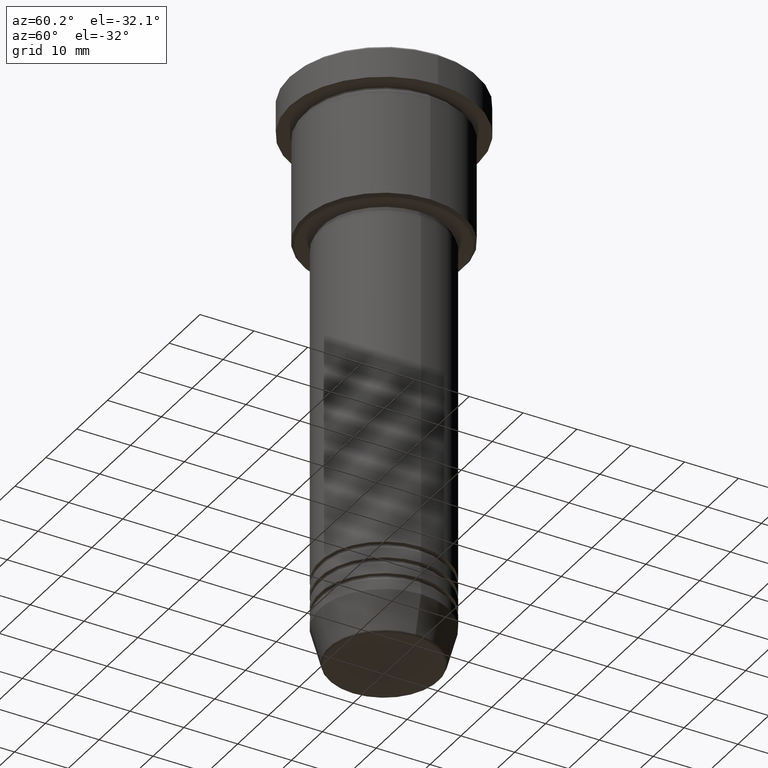
[diagram: clean part render]
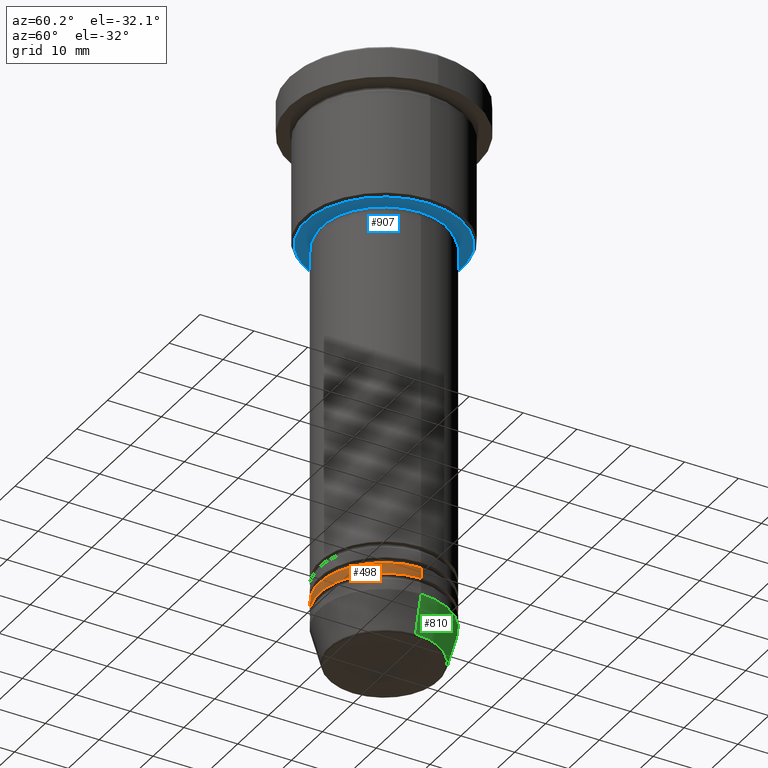
[diagram: same view with three faces highlighted in distinct colors, each labeled with its STEP entity id]
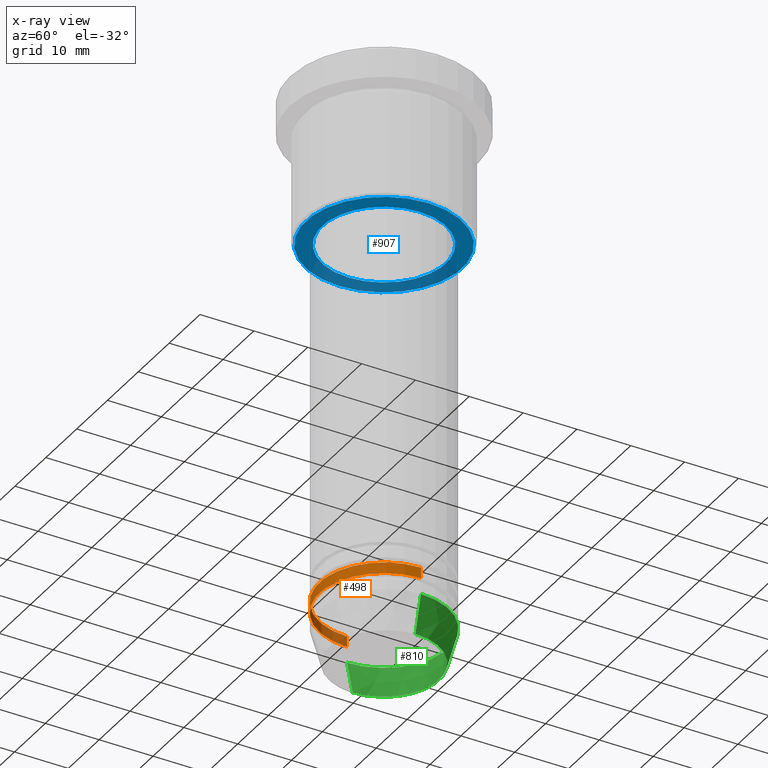
[diagram: x-ray of the same camera — body ghosted, the three highlighted faces saturated]
A machine part, auxiliary view with three faces highlighted in distinct colors.
The next image is the same camera in x-ray (body ghosted, the three faces saturated) — at least one of them is partly hidden behind the body in this view.
Their STEP definitions:

[orange] entity #498 — the highlighted cylindrical surface (partial cylindrical patch) has radius 12 mm, axis along (-0, -0, 1).
#17 = CARTESIAN_POINT ( 'NONE',  ( 0.000000000000000000, 0.000000000000000000, -96.99999999999997158 ) ) ;
#63 = DIRECTION ( 'NONE',  ( -0.000000000000000000, -0.000000000000000000, 1.000000000000000000 ) ) ;
#93 = DIRECTION ( 'NONE',  ( 1.000000000000000000, 0.000000000000000000, 0.000000000000000000 ) ) ;
#98 = EDGE_CURVE ( 'NONE', #1098, #1083, #705, .T. ) ;
#102 = CIRCLE ( 'NONE', #412, 12.00000000000000000 ) ;
#111 = CARTESIAN_POINT ( 'NONE',  ( 12.00000000000000000, 0.000000000000000000, -96.99999999999997158 ) ) ;
#125 = AXIS2_PLACEMENT_3D ( 'NONE', #719, #260, #93 ) ;
#145 = EDGE_LOOP ( 'NONE', ( #1062, #470, #314, #674 ) ) ;
#192 = VECTOR ( 'NONE', #390, 1000.000000000000000 ) ;
#223 = DIRECTION ( 'NONE',  ( 1.000000000000000000, 0.000000000000000000, 0.000000000000000000 ) ) ;
#228 = VECTOR ( 'NONE', #955, 1000.000000000000000 ) ;
#246 = AXIS2_PLACEMENT_3D ( 'NONE', #17, #355, #271 ) ;
#260 = DIRECTION ( 'NONE',  ( -0.000000000000000000, -0.000000000000000000, 1.000000000000000000 ) ) ;
#271 = DIRECTION ( 'NONE',  ( 1.000000000000000000, 0.000000000000000000, 0.000000000000000000 ) ) ;
#289 = EDGE_CURVE ( 'NONE', #616, #436, #102, .T. ) ;
#293 = EDGE_CURVE ( 'NONE', #1098, #616, #403, .T. ) ;
#298 = LINE ( 'NONE', #560, #192 ) ;
#314 = ORIENTED_EDGE ( 'NONE', *, *, #1161, .T. ) ;
#355 = DIRECTION ( 'NONE',  ( -0.000000000000000000, -0.000000000000000000, 1.000000000000000000 ) ) ;
#381 = CYLINDRICAL_SURFACE ( 'NONE', #125, 12.00000000000000000 ) ;
#390 = DIRECTION ( 'NONE',  ( -0.000000000000000000, -0.000000000000000000, 1.000000000000000000 ) ) ;
#403 = LINE ( 'NONE', #775, #228 ) ;
#412 = AXIS2_PLACEMENT_3D ( 'NONE', #966, #63, #223 ) ;
#436 = VERTEX_POINT ( 'NONE', #791 ) ;
#456 = CARTESIAN_POINT ( 'NONE',  ( -12.00000000000000000, 1.469576158976823947E-15, -96.99999999999997158 ) ) ;
#470 = ORIENTED_EDGE ( 'NONE', *, *, #98, .T. ) ;
#498 = ADVANCED_FACE ( 'NONE', ( #817 ), #381, .T. ) ;
#560 = CARTESIAN_POINT ( 'NONE',  ( 12.00000000000000000, 0.000000000000000000, 0.000000000000000000 ) ) ;
#616 = VERTEX_POINT ( 'NONE', #1004 ) ;
#674 = ORIENTED_EDGE ( 'NONE', *, *, #289, .F. ) ;
#705 = CIRCLE ( 'NONE', #246, 12.00000000000000000 ) ;
#719 = CARTESIAN_POINT ( 'NONE',  ( 0.000000000000000000, 0.000000000000000000, 0.000000000000000000 ) ) ;
#775 = CARTESIAN_POINT ( 'NONE',  ( -12.00000000000000000, 1.469576158976823947E-15, 0.000000000000000000 ) ) ;
#791 = CARTESIAN_POINT ( 'NONE',  ( 12.00000000000000000, 0.000000000000000000, -94.99999999999998579 ) ) ;
#817 = FACE_OUTER_BOUND ( 'NONE', #145, .T. ) ;
#955 = DIRECTION ( 'NONE',  ( -0.000000000000000000, -0.000000000000000000, 1.000000000000000000 ) ) ;
#966 = CARTESIAN_POINT ( 'NONE',  ( 0.000000000000000000, 0.000000000000000000, -94.99999999999998579 ) ) ;
#1004 = CARTESIAN_POINT ( 'NONE',  ( -12.00000000000000000, 1.469576158976823947E-15, -94.99999999999998579 ) ) ;
#1062 = ORIENTED_EDGE ( 'NONE', *, *, #293, .F. ) ;
#1083 = VERTEX_POINT ( 'NONE', #111 ) ;
#1098 = VERTEX_POINT ( 'NONE', #456 ) ;
#1161 = EDGE_CURVE ( 'NONE', #1083, #436, #298, .T. ) ;

[blue] entity #907 — the highlighted planar face has unit normal (0, 0, -1).
#53 = ORIENTED_EDGE ( 'NONE', *, *, #427, .T. ) ;
#78 = DIRECTION ( 'NONE',  ( 1.000000000000000000, 0.000000000000000000, 0.000000000000000000 ) ) ;
#126 = AXIS2_PLACEMENT_3D ( 'NONE', #424, #789, #1136 ) ;
#144 = PLANE ( 'NONE',  #126 ) ;
#158 = VERTEX_POINT ( 'NONE', #207 ) ;
#167 = DIRECTION ( 'NONE',  ( 1.000000000000000000, 0.000000000000000000, 0.000000000000000000 ) ) ;
#207 = CARTESIAN_POINT ( 'NONE',  ( -14.49999999999997158, 1.806354028742344224E-15, -26.99999999999999645 ) ) ;
#280 = CARTESIAN_POINT ( 'NONE',  ( 11.50000000000000000, 0.000000000000000000, -27.00000000000000000 ) ) ;
#301 = CIRCLE ( 'NONE', #1056, 14.49999999999997158 ) ;
#326 = DIRECTION ( 'NONE',  ( 0.000000000000000000, 0.000000000000000000, -1.000000000000000000 ) ) ;
#332 = EDGE_CURVE ( 'NONE', #487, #925, #1036, .T. ) ;
#361 = DIRECTION ( 'NONE',  ( 0.000000000000000000, 0.000000000000000000, -1.000000000000000000 ) ) ;
#413 = AXIS2_PLACEMENT_3D ( 'NONE', #538, #651, #78 ) ;
#424 = CARTESIAN_POINT ( 'NONE',  ( 0.000000000000000000, 15.00000000000000000, -26.99999999999999645 ) ) ;
#426 = CARTESIAN_POINT ( 'NONE',  ( 0.000000000000000000, 0.000000000000000000, -26.99999999999999645 ) ) ;
#427 = EDGE_CURVE ( 'NONE', #158, #1006, #301, .T. ) ;
#478 = EDGE_CURVE ( 'NONE', #925, #487, #959, .T. ) ;
#487 = VERTEX_POINT ( 'NONE', #280 ) ;
#509 = EDGE_LOOP ( 'NONE', ( #939, #53 ) ) ;
#538 = CARTESIAN_POINT ( 'NONE',  ( 0.000000000000000000, 0.000000000000000000, -27.00000000000000000 ) ) ;
#558 = EDGE_CURVE ( 'NONE', #1006, #158, #738, .T. ) ;
#566 = AXIS2_PLACEMENT_3D ( 'NONE', #1053, #884, #167 ) ;
#651 = DIRECTION ( 'NONE',  ( -0.000000000000000000, -0.000000000000000000, 1.000000000000000000 ) ) ;
#707 = DIRECTION ( 'NONE',  ( -1.000000000000000000, 0.000000000000000000, 0.000000000000000000 ) ) ;
#717 = CARTESIAN_POINT ( 'NONE',  ( -11.50000000000000000, 1.408343819019456176E-15, -27.00000000000000000 ) ) ;
#724 = EDGE_LOOP ( 'NONE', ( #883, #1129 ) ) ;
#738 = CIRCLE ( 'NONE', #901, 14.49999999999997158 ) ;
#774 = FACE_OUTER_BOUND ( 'NONE', #509, .T. ) ;
#789 = DIRECTION ( 'NONE',  ( 0.000000000000000000, 0.000000000000000000, -1.000000000000000000 ) ) ;
#815 = CARTESIAN_POINT ( 'NONE',  ( 14.49999999999997158, 0.000000000000000000, -26.99999999999999645 ) ) ;
#883 = ORIENTED_EDGE ( 'NONE', *, *, #332, .T. ) ;
#884 = DIRECTION ( 'NONE',  ( -0.000000000000000000, -0.000000000000000000, 1.000000000000000000 ) ) ;
#901 = AXIS2_PLACEMENT_3D ( 'NONE', #978, #361, #1084 ) ;
#907 = ADVANCED_FACE ( 'NONE', ( #774, #1042 ), #144, .T. ) ;
#925 = VERTEX_POINT ( 'NONE', #717 ) ;
#939 = ORIENTED_EDGE ( 'NONE', *, *, #558, .T. ) ;
#959 = CIRCLE ( 'NONE', #413, 11.50000000000000000 ) ;
#978 = CARTESIAN_POINT ( 'NONE',  ( 0.000000000000000000, 0.000000000000000000, -26.99999999999999645 ) ) ;
#1006 = VERTEX_POINT ( 'NONE', #815 ) ;
#1036 = CIRCLE ( 'NONE', #566, 11.50000000000000000 ) ;
#1042 = FACE_BOUND ( 'NONE', #724, .T. ) ;
#1053 = CARTESIAN_POINT ( 'NONE',  ( 0.000000000000000000, 0.000000000000000000, -27.00000000000000000 ) ) ;
#1056 = AXIS2_PLACEMENT_3D ( 'NONE', #426, #326, #707 ) ;
#1084 = DIRECTION ( 'NONE',  ( -1.000000000000000000, 0.000000000000000000, 0.000000000000000000 ) ) ;
#1129 = ORIENTED_EDGE ( 'NONE', *, *, #478, .T. ) ;
#1136 = DIRECTION ( 'NONE',  ( -1.000000000000000000, 0.000000000000000000, -0.000000000000000000 ) ) ;

[green] entity #810 — the highlighted conical surface has half-angle 15 deg.
#7 = VERTEX_POINT ( 'NONE', #195 ) ;
#52 = FACE_OUTER_BOUND ( 'NONE', #307, .T. ) ;
#54 = LINE ( 'NONE', #865, #739 ) ;
#83 = AXIS2_PLACEMENT_3D ( 'NONE', #414, #786, #618 ) ;
#85 = CONICAL_SURFACE ( 'NONE', #1156, 12.00000000000000000, 0.2617993877991500740 ) ;
#107 = CARTESIAN_POINT ( 'NONE',  ( -12.00000000000000000, 1.469576158976823947E-15, -100.0000000000000000 ) ) ;
#137 = ORIENTED_EDGE ( 'NONE', *, *, #983, .T. ) ;
#154 = VERTEX_POINT ( 'NONE', #747 ) ;
#195 = CARTESIAN_POINT ( 'NONE',  ( -10.22365507213719305, 1.360806402472382744E-15, -106.6294095225512564 ) ) ;
#307 = EDGE_LOOP ( 'NONE', ( #763, #137, #837, #744 ) ) ;
#320 = EDGE_CURVE ( 'NONE', #1022, #7, #809, .T. ) ;
#328 = DIRECTION ( 'NONE',  ( 1.000000000000000000, 0.000000000000000000, 0.000000000000000000 ) ) ;
#389 = EDGE_CURVE ( 'NONE', #1022, #154, #54, .T. ) ;
#393 = DIRECTION ( 'NONE',  ( -0.000000000000000000, -0.000000000000000000, 1.000000000000000000 ) ) ;
#414 = CARTESIAN_POINT ( 'NONE',  ( 0.000000000000000000, 0.000000000000000000, -106.6294095225512564 ) ) ;
#516 = DIRECTION ( 'NONE',  ( -0.000000000000000000, -0.000000000000000000, 1.000000000000000000 ) ) ;
#580 = CARTESIAN_POINT ( 'NONE',  ( 0.000000000000000000, 0.000000000000000000, -100.0000000000000000 ) ) ;
#618 = DIRECTION ( 'NONE',  ( 1.000000000000000000, 0.000000000000000000, 0.000000000000000000 ) ) ;
#624 = CARTESIAN_POINT ( 'NONE',  ( -12.00000000000000000, 1.469576158976823947E-15, -100.0000000000000000 ) ) ;
#633 = LINE ( 'NONE', #624, #709 ) ;
#656 = EDGE_CURVE ( 'NONE', #154, #659, #722, .T. ) ;
#659 = VERTEX_POINT ( 'NONE', #107 ) ;
#709 = VECTOR ( 'NONE', #904, 1000.000000000000000 ) ;
#713 = DIRECTION ( 'NONE',  ( 0.2588190451025213501, 0.000000000000000000, 0.9659258262890680902 ) ) ;
#722 = CIRCLE ( 'NONE', #961, 12.00000000000000000 ) ;
#739 = VECTOR ( 'NONE', #713, 1000.000000000000000 ) ;
#744 = ORIENTED_EDGE ( 'NONE', *, *, #389, .F. ) ;
#747 = CARTESIAN_POINT ( 'NONE',  ( 12.00000000000000000, 0.000000000000000000, -100.0000000000000000 ) ) ;
#763 = ORIENTED_EDGE ( 'NONE', *, *, #320, .T. ) ;
#786 = DIRECTION ( 'NONE',  ( -0.000000000000000000, -0.000000000000000000, 1.000000000000000000 ) ) ;
#801 = CARTESIAN_POINT ( 'NONE',  ( 10.22365507213719305, 0.000000000000000000, -106.6294095225512564 ) ) ;
#809 = CIRCLE ( 'NONE', #83, 10.22365507213719305 ) ;
#810 = ADVANCED_FACE ( 'NONE', ( #52 ), #85, .T. ) ;
#837 = ORIENTED_EDGE ( 'NONE', *, *, #656, .F. ) ;
#857 = CARTESIAN_POINT ( 'NONE',  ( 0.000000000000000000, 0.000000000000000000, -100.0000000000000000 ) ) ;
#865 = CARTESIAN_POINT ( 'NONE',  ( 12.00000000000000000, 0.000000000000000000, -100.0000000000000000 ) ) ;
#904 = DIRECTION ( 'NONE',  ( -0.2588190451025213501, 3.169619151431772337E-17, 0.9659258262890680902 ) ) ;
#961 = AXIS2_PLACEMENT_3D ( 'NONE', #580, #393, #1013 ) ;
#983 = EDGE_CURVE ( 'NONE', #7, #659, #633, .T. ) ;
#1013 = DIRECTION ( 'NONE',  ( 1.000000000000000000, 0.000000000000000000, 0.000000000000000000 ) ) ;
#1022 = VERTEX_POINT ( 'NONE', #801 ) ;
#1156 = AXIS2_PLACEMENT_3D ( 'NONE', #857, #516, #328 ) ;